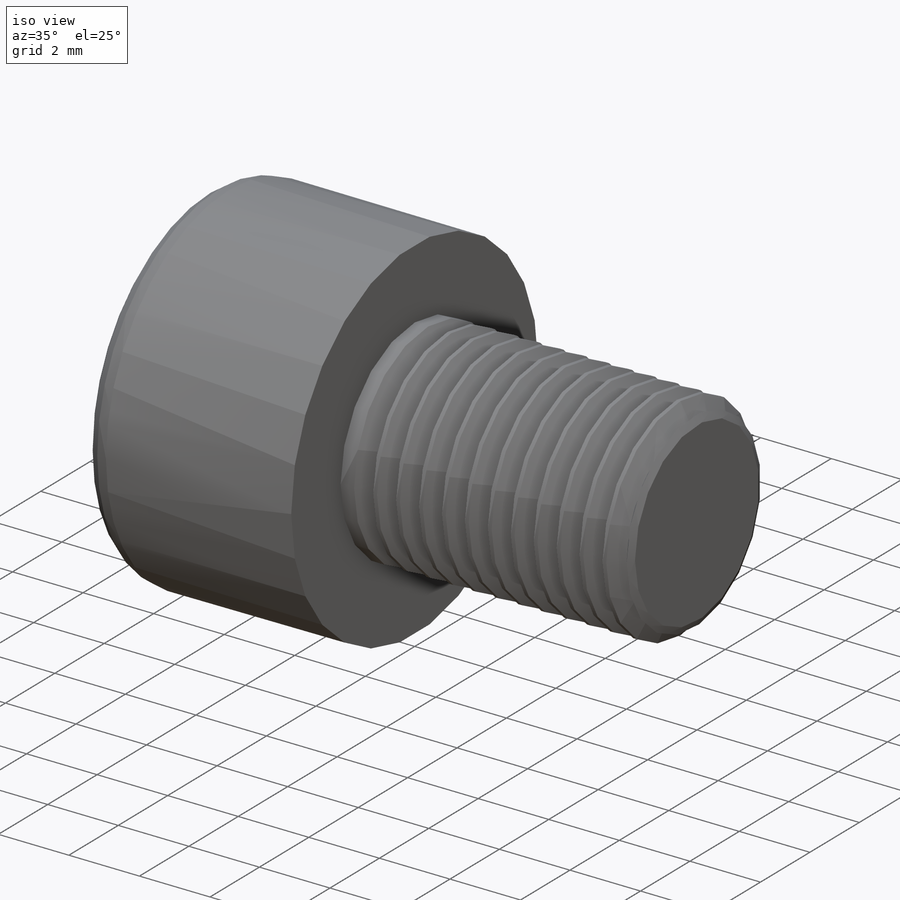
[diagram: iso view]
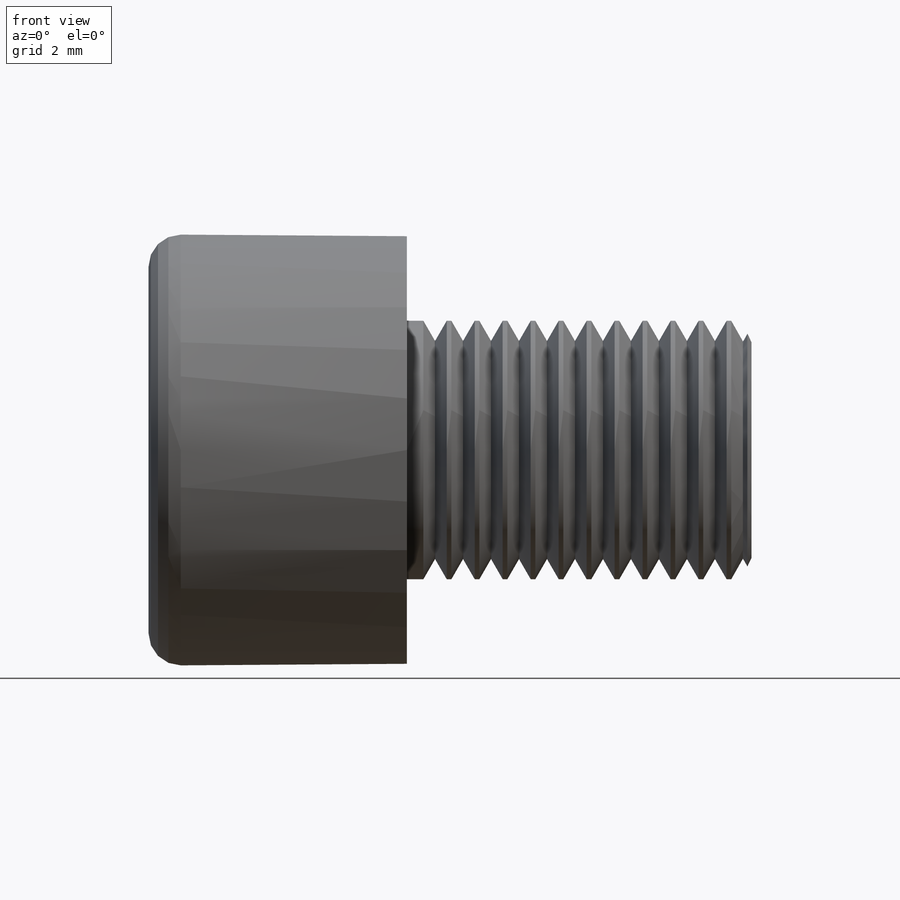
[diagram: front view]
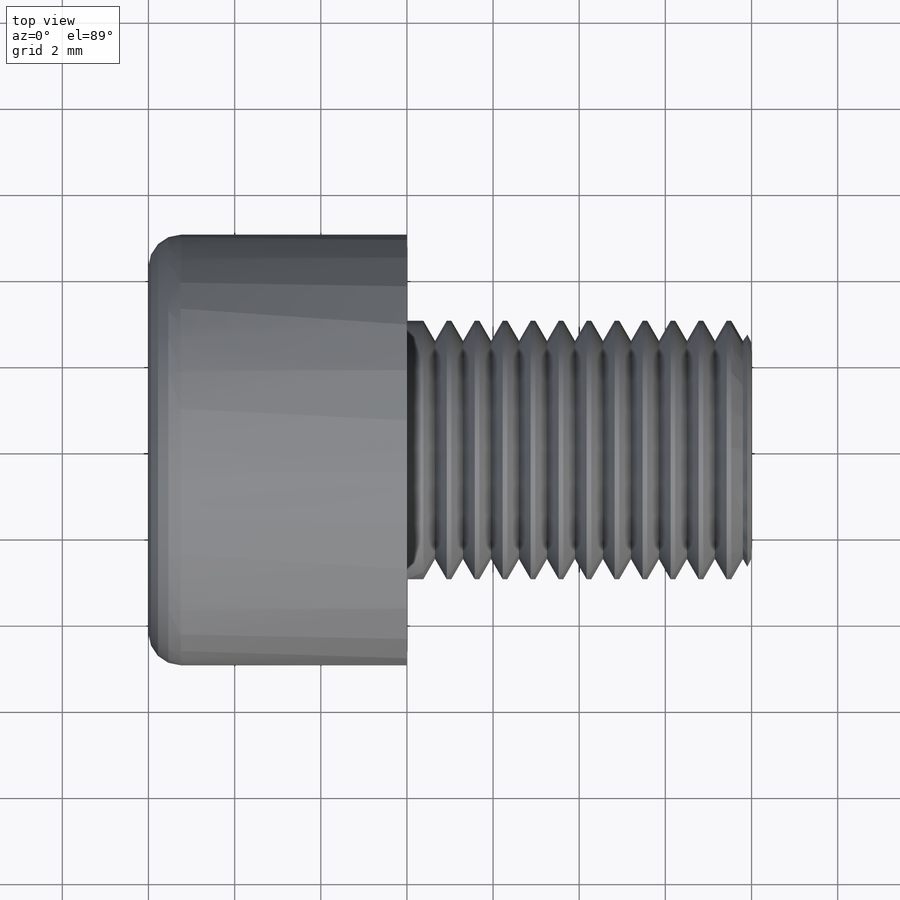
[diagram: top view]
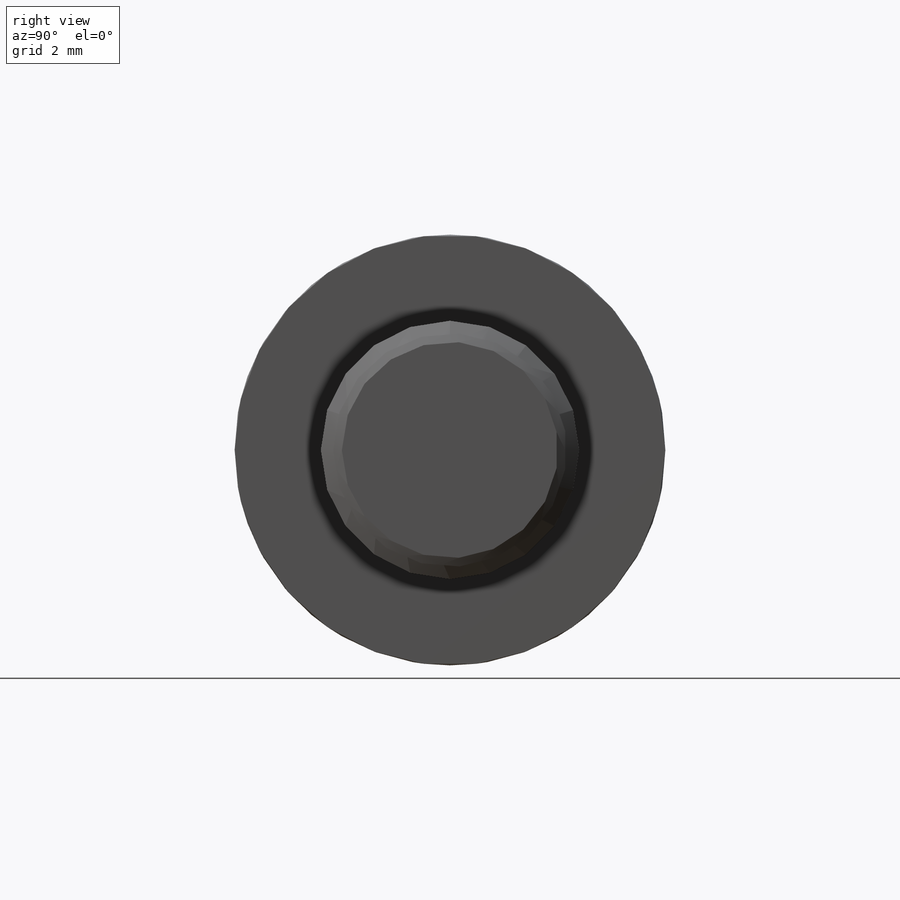
[diagram: right view]
SOLIDWORKS PART (.sldprt)
format: sldprt  version: not decoded by parser v0  size: 321,024 bytes
history: native  units: mm
features: sketch x7, cut_revolve x3, extrude x2, cut_extrude x2, fillet x2, material x1, thread x1, chamfer x1, pattern_linear x1 (+15 scaffold rows collapsed; 1 parser-record rows omitted)
feature tree (36):
  parser-record x1  (decoder bookkeeping rows leaked as tree rows — omitted from the tree; the rows remain in map.json)
  scaffold x15  (default folders/planes/origin — collapsed)
  material  "材质 <未指定>"
  sketch  "Sketch1"  dims[dk=10.0mm]
  extrude  "BaseHead"  Depth=6mm k=6mm
  sketch  "Sketch2"  dims[d=6.0mm]
  extrude  "BaseBody"  [1 undecoded]
  thread  "ThreadCosmetic1"  Diameter=10mm b=10mm l=10mm  [1 undecoded]
  sketch  "Sketch3"  dims[s=5.0mm e=~5.773503mm]
  cut_extrude  "HexagonSocket"  Depth=3mm t=3mm
  sketch  "Sketch4"  dims[c1.D1=~1.776276mm c2.D1=60.0deg c3.D1=~1.743598mm c3.m=60.0deg]
  cut_revolve  "Cut-Revolve1"  Angle=360deg
  fillet  "HeadFillet"  Radius=0.25mm r=0.25mm
  fillet  "TopFillet"  Radius=0.75mm r1=0.75mm
  chamfer  "Chamfer1"  Distance=0.25mm Angle=45deg
  sketch  "Sketch5"  dims[D1=6.0mm D2=0.5415mm]
  cut_revolve  "Cut-Revolve10"  Angle=360deg
  pattern_linear  "LPattern10"  Count1=15 Count2=1 Spacing1=0.6498mm Spacing2=50mm ConfigurationName=0mm CopiedFlag=1 PartNumberID=0mm
  sketch  "草图1"
  cut_extrude  "切除-拉伸1"  Depth=2mm
  sketch  "草图2"
  cut_revolve  "切除-旋转1"  Angle=360deg
decode coverage: 16 of 19 modeling features carry decoded parameters
note: ~ marks probable driven/reference dimensions
note: 2 parameter values undecoded
note: suppression state not decoded; provenance and decode notes live in map.json
